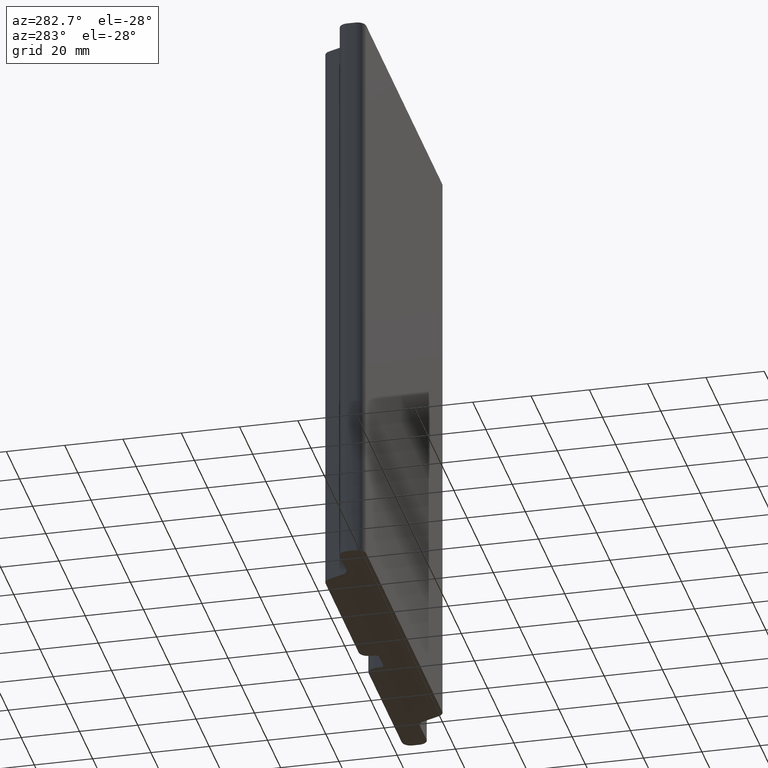
[diagram: clean part render]
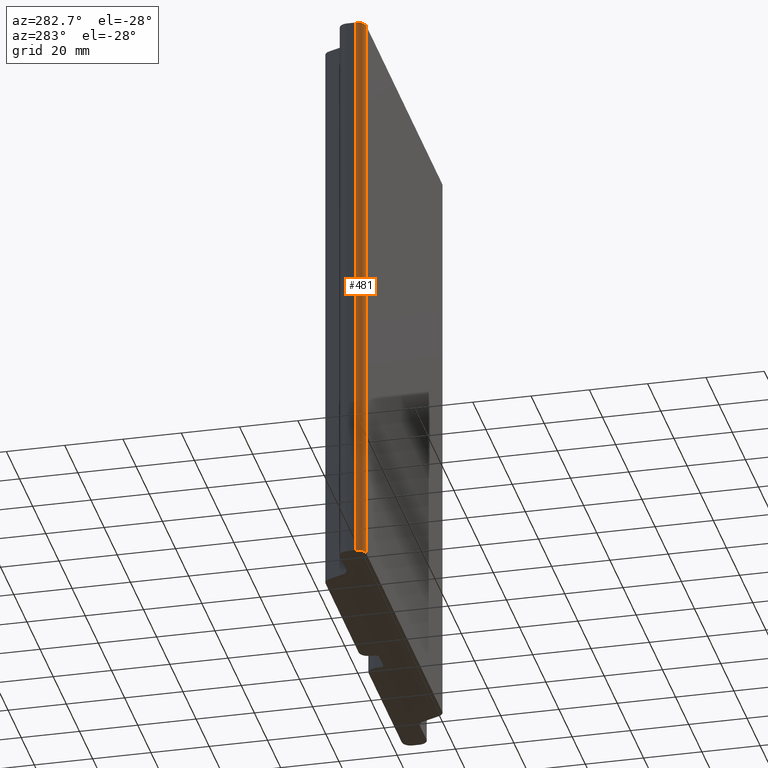
[diagram: same view with one face highlighted and labeled with its STEP entity id]
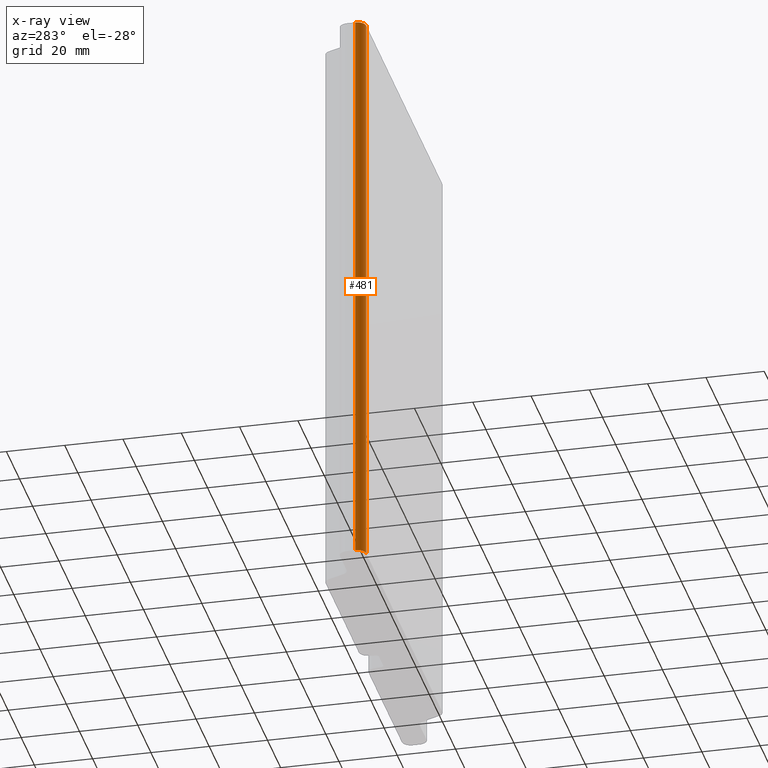
[diagram: x-ray of the same camera — body ghosted, the highlighted face saturated]
A machine part, auxiliary view. The second image highlights one B-rep face of the part: STEP entity #481.
The next image is the same camera in x-ray: the body ghosted, the highlighted face saturated — about 0% of this face is hidden behind the body in this view.
In plain terms, the highlighted cylindrical surface (edge-blend (fillet) strip) has radius 3 mm, axis along (0, 0, 1).
Its self-contained STEP definition (entity closure, byte-faithful):
#33=FACE_OUTER_BOUND('',#59,.T.);
#59=EDGE_LOOP('',(#337,#338,#339,#340));
#89=LINE('',#744,#137);
#90=LINE('',#750,#138);
#137=VECTOR('',#593,10.);
#138=VECTOR('',#600,10.);
#181=CIRCLE('',#526,3.0000000000364);
#182=CIRCLE('',#527,3.0000000000364);
#209=VERTEX_POINT('',#740);
#210=VERTEX_POINT('',#742);
#211=VERTEX_POINT('',#746);
#212=VERTEX_POINT('',#748);
#261=EDGE_CURVE('',#209,#210,#89,.T.);
#262=EDGE_CURVE('',#211,#209,#181,.T.);
#263=EDGE_CURVE('',#212,#210,#182,.T.);
#264=EDGE_CURVE('',#211,#212,#90,.T.);
#337=ORIENTED_EDGE('',*,*,#262,.T.);
#338=ORIENTED_EDGE('',*,*,#261,.T.);
#339=ORIENTED_EDGE('',*,*,#263,.F.);
#340=ORIENTED_EDGE('',*,*,#264,.F.);
#467=CYLINDRICAL_SURFACE('',#525,3.0000000000364);
#481=ADVANCED_FACE('',(#33),#467,.T.);
#525=AXIS2_PLACEMENT_3D('',#745,#594,#595);
#526=AXIS2_PLACEMENT_3D('',#747,#596,#597);
#527=AXIS2_PLACEMENT_3D('',#749,#598,#599);
#593=DIRECTION('',(0.,0.,1.));
#594=DIRECTION('center_axis',(0.,0.,1.));
#595=DIRECTION('ref_axis',(-1.,1.48029736614892E-15,0.));
#596=DIRECTION('center_axis',(0.,0.,1.));
#597=DIRECTION('ref_axis',(-1.,1.48029736614892E-15,0.));
#598=DIRECTION('center_axis',(0.,0.,1.));
#599=DIRECTION('ref_axis',(-1.,1.48029736614892E-15,0.));
#600=DIRECTION('',(0.,0.,1.));
#740=CARTESIAN_POINT('',(-75.977640473723,8.88178419700125E-15,0.));
#742=CARTESIAN_POINT('',(-75.977640473723,8.88178419700125E-15,200.));
#744=CARTESIAN_POINT('',(-75.977640473723,8.88178419700125E-15,0.));
#745=CARTESIAN_POINT('Origin',(-75.977640473723,3.0000000000364,0.));
#746=CARTESIAN_POINT('',(-78.9776404737594,3.00000000003641,0.));
#747=CARTESIAN_POINT('Origin',(-75.977640473723,3.0000000000364,0.));
#748=CARTESIAN_POINT('',(-78.9776404737594,3.00000000003641,200.));
#749=CARTESIAN_POINT('Origin',(-75.977640473723,3.0000000000364,200.));
#750=CARTESIAN_POINT('',(-78.9776404737594,3.00000000003641,0.));